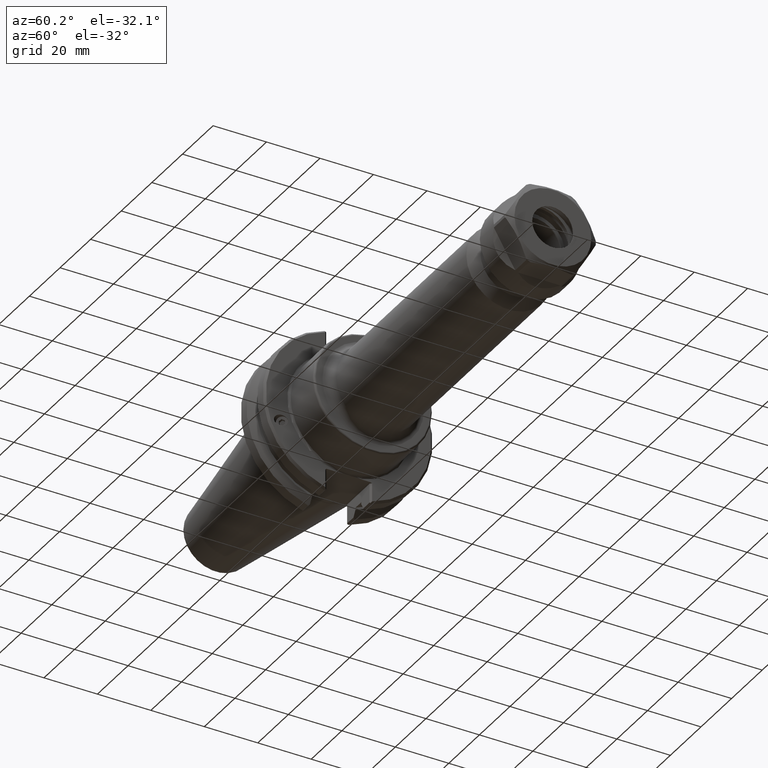
[diagram: clean part render]
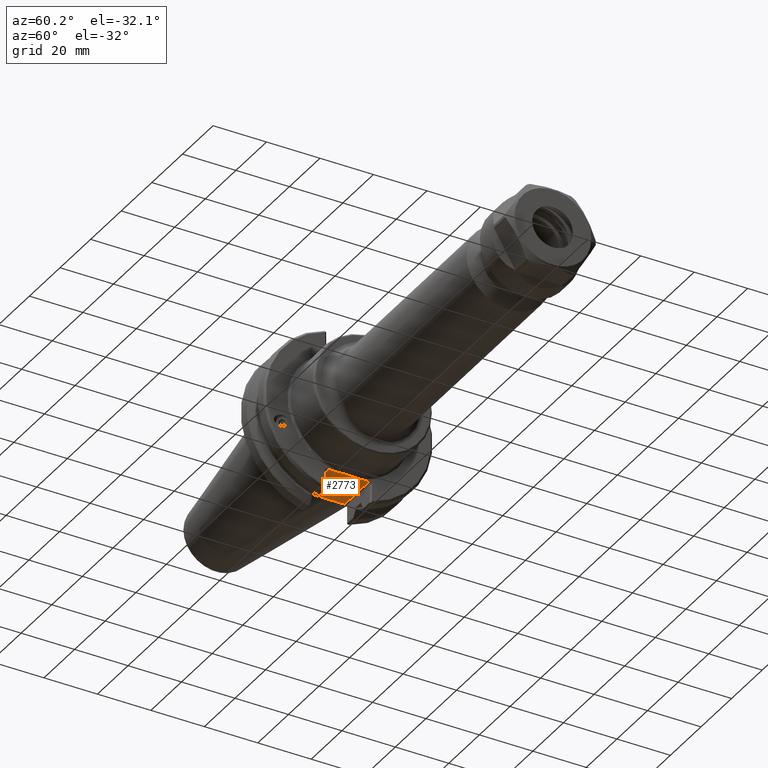
[diagram: same view with one face highlighted and labeled with its STEP entity id]
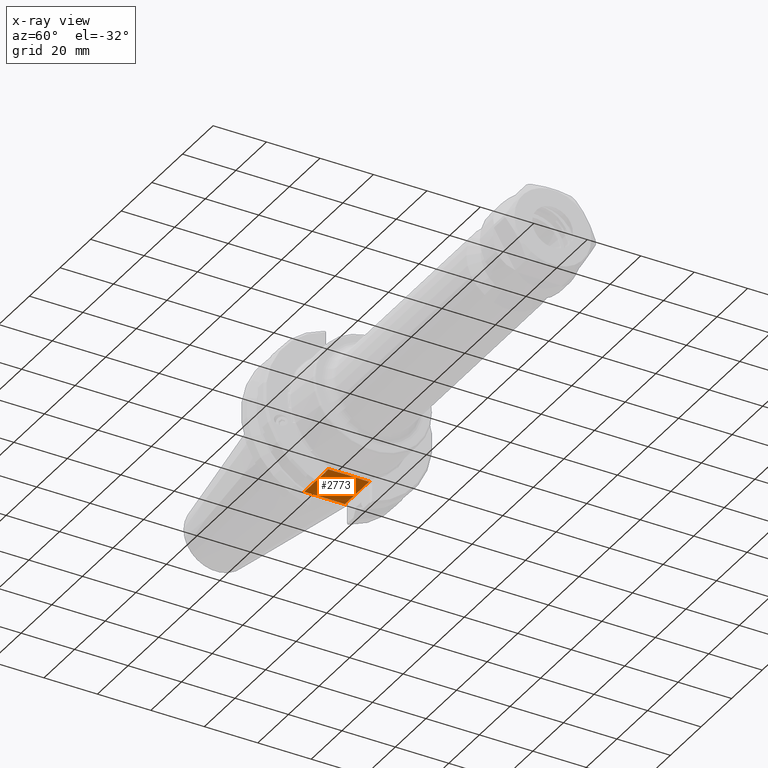
[diagram: x-ray of the same camera — body ghosted, the highlighted face saturated]
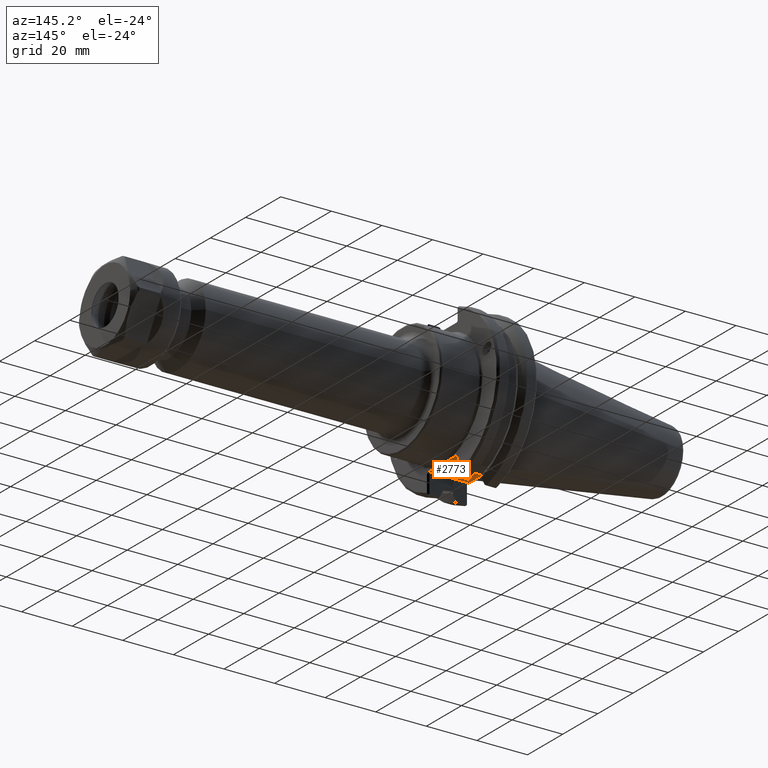
[diagram: same view with one face highlighted and labeled with its STEP entity id]
A machine part, auxiliary view. The second image highlights one B-rep face of the part: STEP entity #2773.
The next image is the same camera in x-ray: the body ghosted, the highlighted face saturated — about 0% of this face is hidden behind the body in this view.
A second angle (auxiliary view) of the same face is appended — the face is thin or edge-on in the first view.
In plain terms, the highlighted planar face has unit normal (0, 0, 1).
Its self-contained STEP definition (entity closure, byte-faithful):
#100=LINE('',#4216,#246);
#106=LINE('',#4239,#252);
#114=LINE('',#4318,#260);
#119=LINE('',#4338,#265);
#144=LINE('',#4435,#290);
#147=LINE('',#4443,#293);
#148=LINE('',#4446,#294);
#159=LINE('',#4484,#305);
#162=LINE('',#4492,#308);
#163=LINE('',#4495,#309);
#246=VECTOR('',#3297,0.142127642103186);
#252=VECTOR('',#3315,0.14212764210251);
#260=VECTOR('',#3393,0.204997332773838);
#265=VECTOR('',#3410,0.204997332774319);
#290=VECTOR('',#3477,0.023639610306788);
#293=VECTOR('',#3484,0.591568542494924);
#294=VECTOR('',#3489,0.0236396103067905);
#305=VECTOR('',#3508,0.0236396103067879);
#308=VECTOR('',#3515,0.591568542494924);
#309=VECTOR('',#3520,0.0236396103067906);
#564=PLANE('',#3038);
#934=FACE_OUTER_BOUND('',#1165,.T.);
#1165=EDGE_LOOP('',(#2284,#2285,#2286,#2287,#2288,#2289,#2290,#2291,#2292,
#2293,#2294,#2295));
#1290=B_SPLINE_CURVE_WITH_KNOTS('',3,(#4200,#4201,#4202,#4203,#4204,#4205,
#4206,#4207,#4208,#4209,#4210),.UNSPECIFIED.,.F.,.F.,(4,2,3,2,4),(2.48272063285708,
2.61227385157181,2.89874315587512,3.18521246017843,3.31476567889317),
 .UNSPECIFIED.);
#1291=B_SPLINE_CURVE_WITH_KNOTS('',3,(#4302,#4303,#4304,#4305,#4306,#4307,
#4308,#4309,#4310,#4311,#4312),.UNSPECIFIED.,.F.,.F.,(4,2,3,2,4),(2.31052109915462,
2.38928397529744,2.5765613596665,2.76383874403557,2.84260162017839),
 .UNSPECIFIED.);
#1330=VERTEX_POINT('',#4198);
#1331=VERTEX_POINT('',#4199);
#1333=VERTEX_POINT('',#4215);
#1344=VERTEX_POINT('',#4237);
#1366=VERTEX_POINT('',#4300);
#1367=VERTEX_POINT('',#4301);
#1369=VERTEX_POINT('',#4317);
#1378=VERTEX_POINT('',#4336);
#1405=VERTEX_POINT('',#4434);
#1408=VERTEX_POINT('',#4442);
#1419=VERTEX_POINT('',#4483);
#1422=VERTEX_POINT('',#4491);
#1592=EDGE_CURVE('',#1330,#1331,#1290,.F.);
#1595=EDGE_CURVE('',#1333,#1330,#100,.T.);
#1607=EDGE_CURVE('',#1331,#1344,#106,.T.);
#1630=EDGE_CURVE('',#1366,#1367,#1291,.F.);
#1633=EDGE_CURVE('',#1369,#1366,#114,.T.);
#1644=EDGE_CURVE('',#1367,#1378,#119,.T.);
#1683=EDGE_CURVE('',#1369,#1405,#144,.T.);
#1687=EDGE_CURVE('',#1405,#1408,#147,.T.);
#1689=EDGE_CURVE('',#1408,#1344,#148,.T.);
#1704=EDGE_CURVE('',#1333,#1419,#159,.T.);
#1708=EDGE_CURVE('',#1419,#1422,#162,.T.);
#1710=EDGE_CURVE('',#1422,#1378,#163,.T.);
#2284=ORIENTED_EDGE('',*,*,#1683,.F.);
#2285=ORIENTED_EDGE('',*,*,#1633,.T.);
#2286=ORIENTED_EDGE('',*,*,#1630,.T.);
#2287=ORIENTED_EDGE('',*,*,#1644,.T.);
#2288=ORIENTED_EDGE('',*,*,#1710,.F.);
#2289=ORIENTED_EDGE('',*,*,#1708,.F.);
#2290=ORIENTED_EDGE('',*,*,#1704,.F.);
#2291=ORIENTED_EDGE('',*,*,#1595,.T.);
#2292=ORIENTED_EDGE('',*,*,#1592,.T.);
#2293=ORIENTED_EDGE('',*,*,#1607,.T.);
#2294=ORIENTED_EDGE('',*,*,#1689,.F.);
#2295=ORIENTED_EDGE('',*,*,#1687,.F.);
#2773=ADVANCED_FACE('',(#934),#564,.F.);
#3038=AXIS2_PLACEMENT_3D('',#4656,#3633,#3634);
#3297=DIRECTION('',(0.,-1.,0.));
#3315=DIRECTION('',(0.,-1.,0.));
#3393=DIRECTION('',(0.,1.,0.));
#3410=DIRECTION('',(0.,1.,0.));
#3477=DIRECTION('',(0.707106781186488,0.707106781186607,0.));
#3484=DIRECTION('',(1.,1.62280443356971E-13,0.));
#3489=DIRECTION('',(0.707106781186604,-0.707106781186491,0.));
#3508=DIRECTION('',(-0.707106781186489,-0.707106781186606,0.));
#3515=DIRECTION('',(-1.,-1.62419203889982E-13,0.));
#3520=DIRECTION('',(-0.707106781186605,0.70710678118649,0.));
#3633=DIRECTION('center_axis',(0.,0.,1.));
#3634=DIRECTION('ref_axis',(1.,0.,0.));
#4198=CARTESIAN_POINT('',(0.75,0.17458808664969,-0.888));
#4199=CARTESIAN_POINT('',(0.75,-0.17458808664969,-0.888));
#4200=CARTESIAN_POINT('Ctrl Pts',(0.75,-0.17458808664969,-0.888));
#4201=CARTESIAN_POINT('Ctrl Pts',(0.75,-0.157586351910224,-0.888));
#4202=CARTESIAN_POINT('Ctrl Pts',(0.75064285068752,-0.137194400552612,-0.888));
#4203=CARTESIAN_POINT('Ctrl Pts',(0.752916249322132,-0.0826456219450955,
-0.888));
#4204=CARTESIAN_POINT('Ctrl Pts',(0.755281585811383,-0.0375943968901984,
-0.888));
#4205=CARTESIAN_POINT('Ctrl Pts',(0.755281585811383,0.,-0.888));
#4206=CARTESIAN_POINT('Ctrl Pts',(0.755281585811383,0.0375943968901984,
-0.888));
#4207=CARTESIAN_POINT('Ctrl Pts',(0.752916249322132,0.0826456219450955,
-0.888));
#4208=CARTESIAN_POINT('Ctrl Pts',(0.75064285068752,0.137194400552612,-0.888));
#4209=CARTESIAN_POINT('Ctrl Pts',(0.75,0.157586351910224,-0.888));
#4210=CARTESIAN_POINT('Ctrl Pts',(0.75,0.17458808664969,-0.888));
#4215=CARTESIAN_POINT('',(0.75,0.316715728752876,-0.888));
#4216=CARTESIAN_POINT('',(0.75,0.531250000000153,-0.888));
#4237=CARTESIAN_POINT('',(0.75,-0.3167157287522,-0.888));
#4239=CARTESIAN_POINT('',(0.75,0.531250000000153,-0.888));
#4300=CARTESIAN_POINT('',(0.125,-0.11171839597846,-0.888));
#4301=CARTESIAN_POINT('',(0.125,0.11171839597846,-0.888));
#4302=CARTESIAN_POINT('Ctrl Pts',(0.125,0.11171839597846,-0.888));
#4303=CARTESIAN_POINT('Ctrl Pts',(0.125,0.101382060526646,-0.888));
#4304=CARTESIAN_POINT('Ctrl Pts',(0.12490012078969,0.0889788601264407,-0.888));
#4305=CARTESIAN_POINT('Ctrl Pts',(0.124535784579865,0.0540673411642428,
-0.888));
#4306=CARTESIAN_POINT('Ctrl Pts',(0.12417190429163,0.0245770845628693,-0.888));
#4307=CARTESIAN_POINT('Ctrl Pts',(0.12417190429163,0.,-0.888));
#4308=CARTESIAN_POINT('Ctrl Pts',(0.12417190429163,-0.0245770845628693,
-0.888));
#4309=CARTESIAN_POINT('Ctrl Pts',(0.124535784579865,-0.0540673411642428,
-0.888));
#4310=CARTESIAN_POINT('Ctrl Pts',(0.12490012078969,-0.0889788601264407,
-0.888));
#4311=CARTESIAN_POINT('Ctrl Pts',(0.125,-0.101382060526646,-0.888));
#4312=CARTESIAN_POINT('Ctrl Pts',(0.125,-0.11171839597846,-0.888));
#4317=CARTESIAN_POINT('',(0.125,-0.316715728752297,-0.888));
#4318=CARTESIAN_POINT('',(0.125,0.531250000000153,-0.888));
#4336=CARTESIAN_POINT('',(0.125,0.316715728752779,-0.888));
#4338=CARTESIAN_POINT('',(0.125,0.531250000000153,-0.888));
#4434=CARTESIAN_POINT('',(0.141715728752536,-0.299999999999759,-0.888));
#4435=CARTESIAN_POINT('',(0.307898622073957,-0.133817106678309,-0.888));
#4442=CARTESIAN_POINT('',(0.73328427124746,-0.299999999999663,-0.888));
#4443=CARTESIAN_POINT('',(0.334081515395428,-0.299999999999727,-0.888));
#4446=CARTESIAN_POINT('',(0.61993289332142,-0.186648622073641,-0.888));
#4483=CARTESIAN_POINT('',(0.733284271247464,0.300000000000337,-0.888));
#4484=CARTESIAN_POINT('',(0.619932893321422,0.186648622074277,-0.888));
#4491=CARTESIAN_POINT('',(0.14171572875254,0.300000000000241,-0.888));
#4492=CARTESIAN_POINT('',(0.649081515395331,0.300000000000324,-0.888));
#4495=CARTESIAN_POINT('',(0.30789862207396,0.133817106678849,-0.888));
#4656=CARTESIAN_POINT('Origin',(0.54316303079076,3.06533111948112E-13,-0.888));